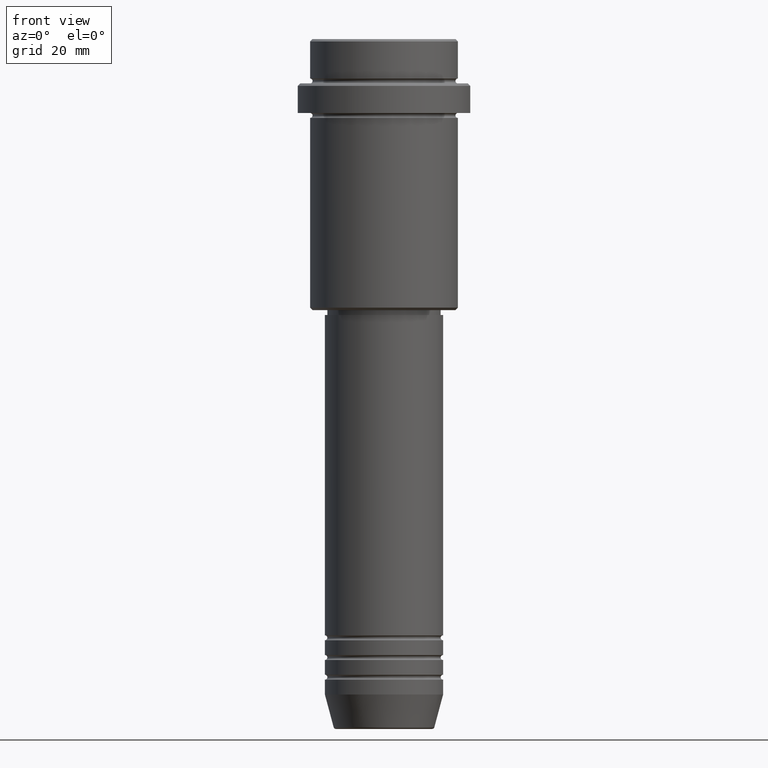
[diagram: clean part render]
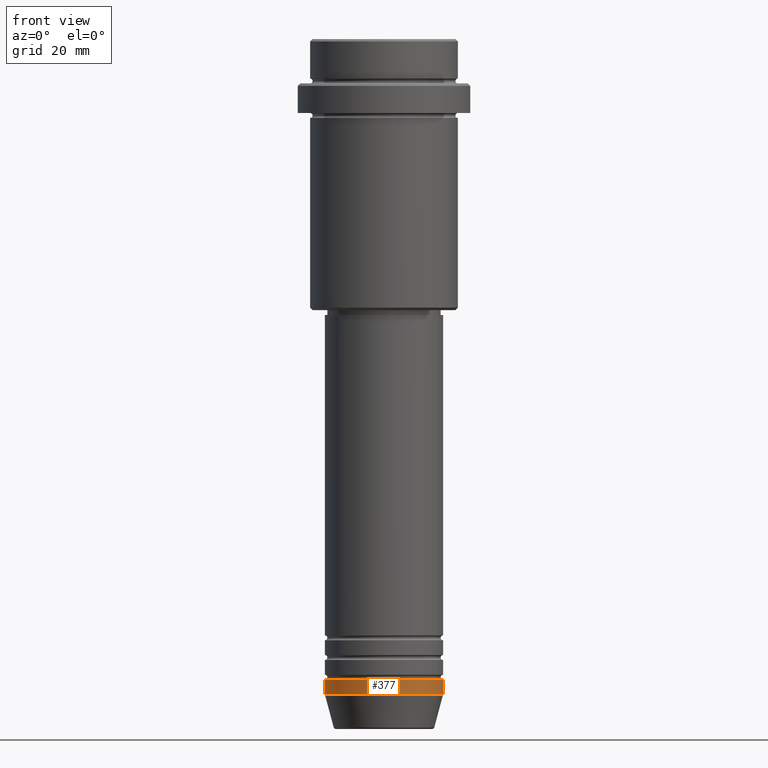
[diagram: same view with one face highlighted and labeled with its STEP entity id]
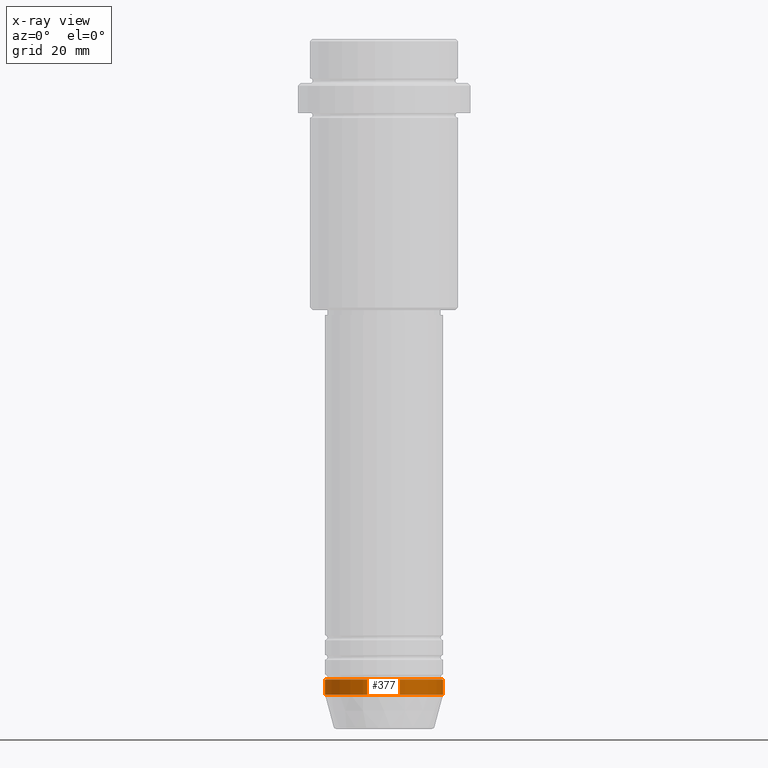
[diagram: x-ray of the same camera — body ghosted, the highlighted face saturated]
A machine part, front view. The second image highlights one B-rep face of the part: STEP entity #377.
The next image is the same camera in x-ray: the body ghosted, the highlighted face saturated — about 0% of this face is hidden behind the body in this view.
In plain terms, the highlighted cylindrical surface (partial cylindrical patch) has radius 12 mm, axis along (-0, -0, 1).
Its self-contained STEP definition (entity closure, byte-faithful):
#64 = AXIS2_PLACEMENT_3D ( 'NONE', #849, #1280, #752 ) ;
#69 = EDGE_CURVE ( 'NONE', #1220, #496, #150, .T. ) ;
#133 = CARTESIAN_POINT ( 'NONE',  ( -12.00000000000000000, 1.469576158976823947E-15, -133.0000000000000000 ) ) ;
#150 = LINE ( 'NONE', #579, #851 ) ;
#220 = CARTESIAN_POINT ( 'NONE',  ( 0.000000000000000000, 0.000000000000000000, -133.0000000000000000 ) ) ;
#251 = VECTOR ( 'NONE', #292, 1000.000000000000000 ) ;
#292 = DIRECTION ( 'NONE',  ( -0.000000000000000000, -0.000000000000000000, 1.000000000000000000 ) ) ;
#301 = AXIS2_PLACEMENT_3D ( 'NONE', #220, #743, #408 ) ;
#317 = ORIENTED_EDGE ( 'NONE', *, *, #1103, .T. ) ;
#320 = CYLINDRICAL_SURFACE ( 'NONE', #64, 12.00000000000000000 ) ;
#362 = CARTESIAN_POINT ( 'NONE',  ( 12.00000000000000000, 0.000000000000000000, -130.0000000000000000 ) ) ;
#377 = ADVANCED_FACE ( 'NONE', ( #957 ), #320, .T. ) ;
#391 = EDGE_CURVE ( 'NONE', #1055, #496, #1225, .T. ) ;
#408 = DIRECTION ( 'NONE',  ( 1.000000000000000000, 0.000000000000000000, 0.000000000000000000 ) ) ;
#479 = EDGE_LOOP ( 'NONE', ( #574, #317, #513, #727 ) ) ;
#496 = VERTEX_POINT ( 'NONE', #362 ) ;
#511 = CARTESIAN_POINT ( 'NONE',  ( -12.00000000000000000, 1.469576158976823947E-15, -130.0000000000000000 ) ) ;
#513 = ORIENTED_EDGE ( 'NONE', *, *, #69, .T. ) ;
#574 = ORIENTED_EDGE ( 'NONE', *, *, #1338, .F. ) ;
#579 = CARTESIAN_POINT ( 'NONE',  ( 12.00000000000000000, 0.000000000000000000, 0.000000000000000000 ) ) ;
#599 = DIRECTION ( 'NONE',  ( -0.000000000000000000, -0.000000000000000000, 1.000000000000000000 ) ) ;
#718 = CARTESIAN_POINT ( 'NONE',  ( -12.00000000000000000, 1.469576158976823947E-15, 0.000000000000000000 ) ) ;
#727 = ORIENTED_EDGE ( 'NONE', *, *, #391, .F. ) ;
#743 = DIRECTION ( 'NONE',  ( -0.000000000000000000, -0.000000000000000000, 1.000000000000000000 ) ) ;
#752 = DIRECTION ( 'NONE',  ( 1.000000000000000000, 0.000000000000000000, 0.000000000000000000 ) ) ;
#849 = CARTESIAN_POINT ( 'NONE',  ( 0.000000000000000000, 0.000000000000000000, 0.000000000000000000 ) ) ;
#851 = VECTOR ( 'NONE', #599, 1000.000000000000000 ) ;
#887 = CARTESIAN_POINT ( 'NONE',  ( 12.00000000000000000, 0.000000000000000000, -133.0000000000000000 ) ) ;
#917 = CIRCLE ( 'NONE', #301, 12.00000000000000000 ) ;
#957 = FACE_OUTER_BOUND ( 'NONE', #479, .T. ) ;
#1055 = VERTEX_POINT ( 'NONE', #511 ) ;
#1070 = CARTESIAN_POINT ( 'NONE',  ( 0.000000000000000000, 0.000000000000000000, -130.0000000000000000 ) ) ;
#1079 = DIRECTION ( 'NONE',  ( -0.000000000000000000, -0.000000000000000000, 1.000000000000000000 ) ) ;
#1103 = EDGE_CURVE ( 'NONE', #1235, #1220, #917, .T. ) ;
#1108 = DIRECTION ( 'NONE',  ( 1.000000000000000000, 0.000000000000000000, 0.000000000000000000 ) ) ;
#1220 = VERTEX_POINT ( 'NONE', #887 ) ;
#1225 = CIRCLE ( 'NONE', #1407, 12.00000000000000000 ) ;
#1235 = VERTEX_POINT ( 'NONE', #133 ) ;
#1280 = DIRECTION ( 'NONE',  ( -0.000000000000000000, -0.000000000000000000, 1.000000000000000000 ) ) ;
#1338 = EDGE_CURVE ( 'NONE', #1235, #1055, #1355, .T. ) ;
#1355 = LINE ( 'NONE', #718, #251 ) ;
#1407 = AXIS2_PLACEMENT_3D ( 'NONE', #1070, #1079, #1108 ) ;